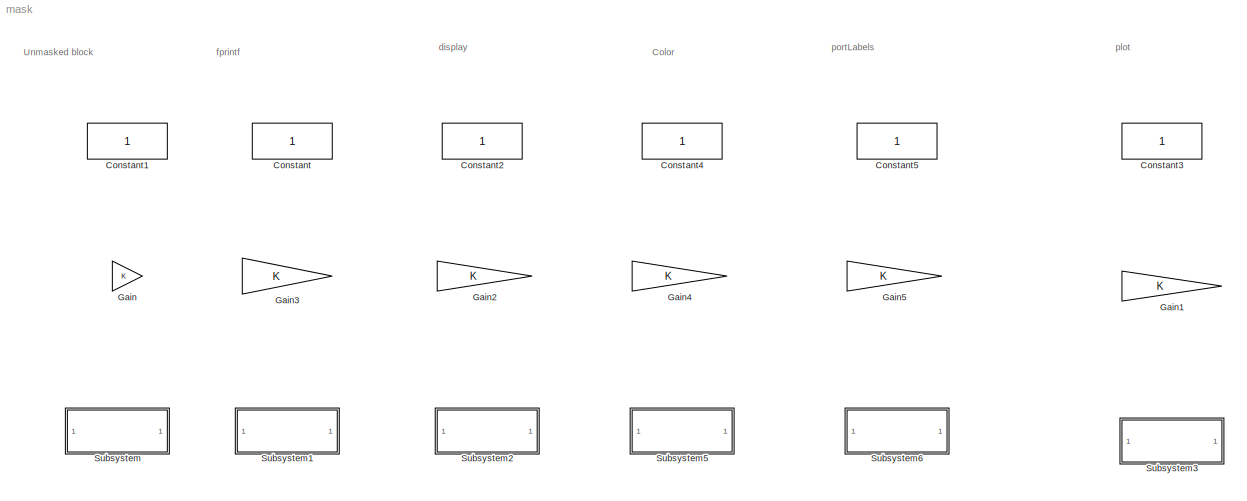
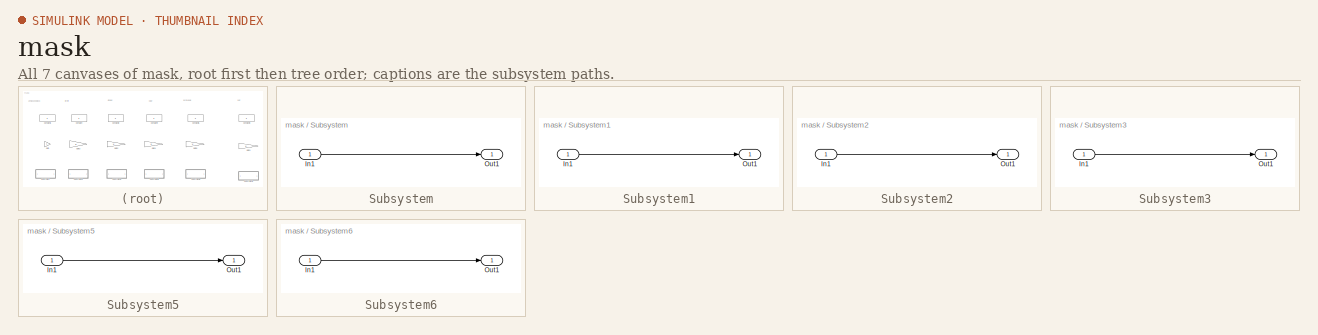
[diagram: thumbnail index - all 7 canvases of the model, root first then tree order]
MODEL mask
KIND model
BLOCK [Constant] Constant
  SID = 1
BLOCK [Constant] Constant1
  SID = 3
BLOCK [Constant] Constant2
  SID = 4
BLOCK [Constant] Constant3
  SID = 5
BLOCK [Constant] Constant4
  SID = 35
BLOCK [Constant] Constant5
  SID = 42
BLOCK [Gain] Gain
  OutDataTypeStr = Inherit: Inherit via internal rule
  ParamDataTypeStr = Inherit: Inherit via internal rule
  SID = 18
  SaturateOnIntegerOverflow = off
BLOCK [Gain] Gain1
  OutDataTypeStr = Inherit: Inherit via internal rule
  ParamDataTypeStr = Inherit: Inherit via internal rule
  SID = 19
  SaturateOnIntegerOverflow = off
BLOCK [Gain] Gain2
  OutDataTypeStr = Inherit: Inherit via internal rule
  ParamDataTypeStr = Inherit: Inherit via internal rule
  SID = 20
  SaturateOnIntegerOverflow = off
BLOCK [Gain] Gain3
  OutDataTypeStr = Inherit: Inherit via internal rule
  ParamDataTypeStr = Inherit: Inherit via internal rule
  SID = 21
  SaturateOnIntegerOverflow = off
BLOCK [Gain] Gain4
  OutDataTypeStr = Inherit: Inherit via internal rule
  ParamDataTypeStr = Inherit: Inherit via internal rule
  SID = 36
  SaturateOnIntegerOverflow = off
BLOCK [Gain] Gain5
  OutDataTypeStr = Inherit: Inherit via internal rule
  ParamDataTypeStr = Inherit: Inherit via internal rule
  SID = 41
  SaturateOnIntegerOverflow = off
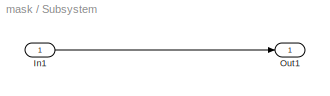
BLOCK [SubSystem] Subsystem
  Ports = [1, 1]
  RequestExecContextInheritance = off
  SID = 6
BLOCK [Inport] Subsystem/In1
  IconDisplay = Port number
  SID = 7
BLOCK [Outport] Subsystem/Out1
  IconDisplay = Port number
  SID = 8
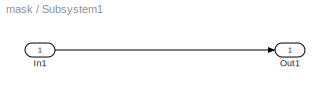
BLOCK [SubSystem] Subsystem1
  Ports = [1, 1]
  RequestExecContextInheritance = off
  SID = 9
BLOCK [Inport] Subsystem1/In1
  IconDisplay = Port number
  SID = 10
BLOCK [Outport] Subsystem1/Out1
  IconDisplay = Port number
  SID = 11
BLOCK [SubSystem] Subsystem2
  Ports = [1, 1]
  RequestExecContextInheritance = off
  SID = 12
BLOCK [Inport] Subsystem2/In1
  IconDisplay = Port number
  SID = 13
BLOCK [Outport] Subsystem2/Out1
  IconDisplay = Port number
  SID = 14
BLOCK [SubSystem] Subsystem3
  Ports = [1, 1]
  RequestExecContextInheritance = off
  SID = 15
BLOCK [Inport] Subsystem3/In1
  IconDisplay = Port number
  SID = 16
BLOCK [Outport] Subsystem3/Out1
  IconDisplay = Port number
  SID = 17
BLOCK [SubSystem] Subsystem5
  Ports = [1, 1]
  RequestExecContextInheritance = off
  SID = 37
BLOCK [Inport] Subsystem5/In1
  IconDisplay = Port number
  SID = 38
BLOCK [Outport] Subsystem5/Out1
  IconDisplay = Port number
  SID = 39
BLOCK [SubSystem] Subsystem6
  Ports = [1, 1]
  RequestExecContextInheritance = off
  SID = 43
BLOCK [Inport] Subsystem6/In1
  IconDisplay = Port number
  SID = 44
BLOCK [Outport] Subsystem6/Out1
  IconDisplay = Port number
  SID = 45
ANNOTATION (root): \n \n fprintf
ANNOTATION (root): \n \n Color
ANNOTATION (root): \n \n Unmasked block
ANNOTATION (root): \n \n display
ANNOTATION (root): \n \n plot
ANNOTATION (root): \n \n portLabels
ANNOTATION (root): \n \n
LINE Subsystem/In1:1 -> Subsystem/Out1:1
LINE Subsystem1/In1:1 -> Subsystem1/Out1:1
LINE Subsystem2/In1:1 -> Subsystem2/Out1:1
LINE Subsystem3/In1:1 -> Subsystem3/Out1:1
LINE Subsystem5/In1:1 -> Subsystem5/Out1:1
LINE Subsystem6/In1:1 -> Subsystem6/Out1:1
